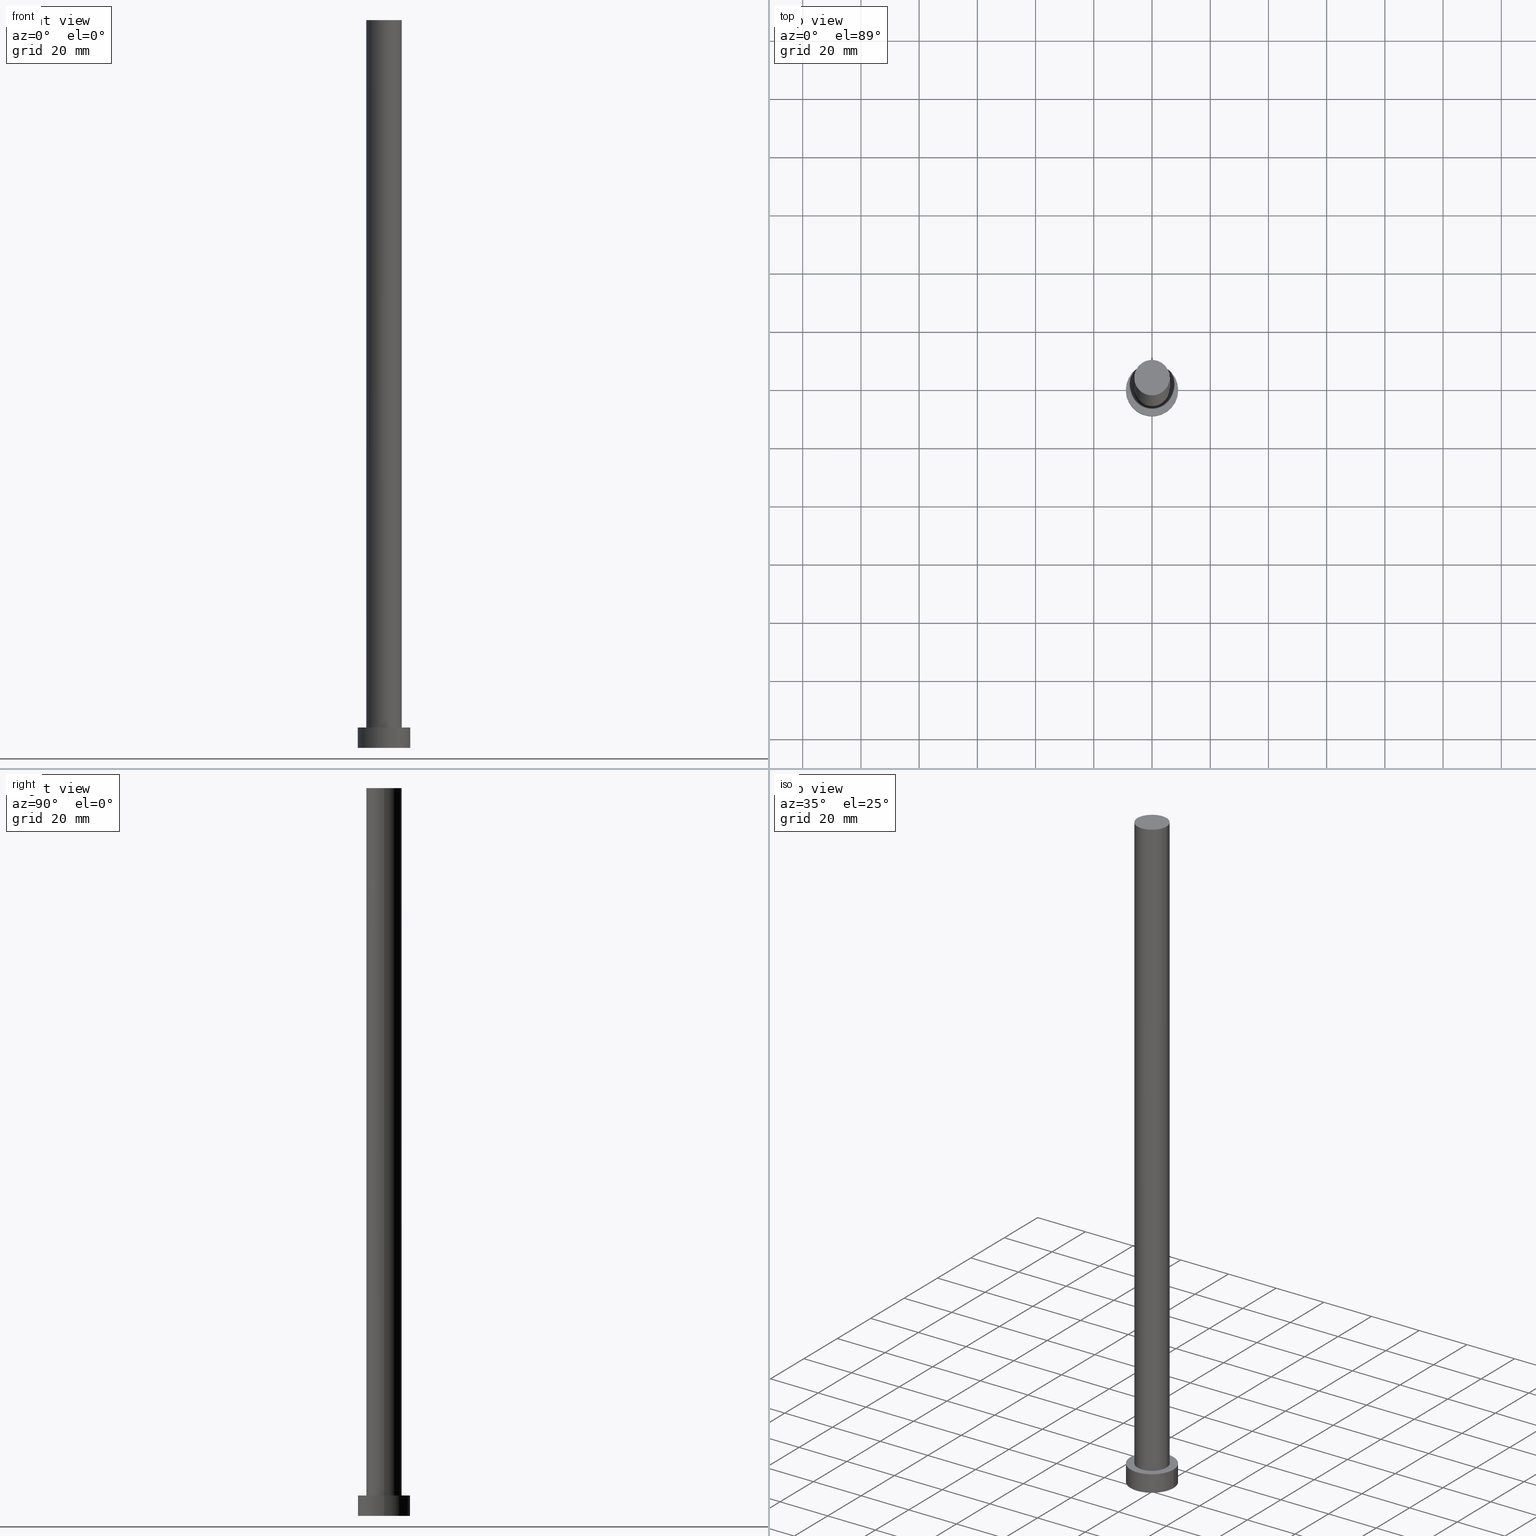
[diagram: canonical four-view strip — front | top / right | iso, engineering-drawing reading convention]
A machine part, canonical four-view strip (front | top / right | iso — engineering-drawing reading convention). The complete STEP part file that produces these views, byte-faithful:
ISO-10303-21;
HEADER;
FILE_DESCRIPTION (( 'STEP AP203' ),
    '1' );
FILE_NAME ('5ee6.STEP',
    '2023-02-12T11:03:09',
    ( '' ),
    ( '' ),
    'SwSTEP 2.0',
    'SolidWorks 2019',
    '' );
FILE_SCHEMA (( 'CONFIG_CONTROL_DESIGN' ));
ENDSEC;

DATA;
#1 = CIRCLE ( 'NONE', #216, 9.000000000000000000 ) ;
#2 = PERSON_AND_ORGANIZATION_ROLE ( 'design_supplier' ) ;
#3 = APPROVAL_DATE_TIME ( #164, #233 ) ;
#4 = AXIS2_PLACEMENT_3D ( 'NONE', #19, #177, #116 ) ;
#5 = CC_DESIGN_PERSON_AND_ORGANIZATION_ASSIGNMENT ( #41, #121, ( #105 ) ) ;
#6 = AXIS2_PLACEMENT_3D ( 'NONE', #153, #135, #211 ) ;
#7 = ORGANIZATION ( 'NEUR�EN�', 'NEUR�EN�', '' ) ;
#8 = DIRECTION ( 'NONE',  ( -0.000000000000000000, -0.000000000000000000, -1.000000000000000000 ) ) ;
#9 = DIRECTION ( 'NONE',  ( 1.000000000000000000, 0.000000000000000000, -0.000000000000000000 ) ) ;
#10 = DIRECTION ( 'NONE',  ( -0.000000000000000000, -0.000000000000000000, -1.000000000000000000 ) ) ;
#11 = CARTESIAN_POINT ( 'NONE',  ( 9.000000000000000000, 1.102182119232617714E-15, 0.000000000000000000 ) ) ;
#12 = LINE ( 'NONE', #112, #178 ) ;
#13 = CC_DESIGN_SECURITY_CLASSIFICATION ( #228, ( #38 ) ) ;
#14 = UNCERTAINTY_MEASURE_WITH_UNIT (LENGTH_MEASURE( 1.000000000000000082E-05 ), #159, 'distance_accuracy_value', 'NONE');
#15 = CARTESIAN_POINT ( 'NONE',  ( 0.000000000000000000, 0.000000000000000000, 250.0000000000000000 ) ) ;
#16 = CARTESIAN_POINT ( 'NONE',  ( 0.000000000000000000, 0.000000000000000000, 7.000000000000000000 ) ) ;
#17 = VERTEX_POINT ( 'NONE', #85 ) ;
#18 = CYLINDRICAL_SURFACE ( 'NONE', #204, 6.099999999999999645 ) ;
#19 = CARTESIAN_POINT ( 'NONE',  ( 0.000000000000000000, 0.000000000000000000, 0.000000000000000000 ) ) ;
#20 = EDGE_CURVE ( 'NONE', #36, #148, #130, .T. ) ;
#21 = CALENDAR_DATE ( 2023, 12, 2 ) ;
#22 = ADVANCED_FACE ( 'NONE', ( #63 ), #199, .T. ) ;
#23 = DIRECTION ( 'NONE',  ( 0.000000000000000000, 0.000000000000000000, 1.000000000000000000 ) ) ;
#24 = AXIS2_PLACEMENT_3D ( 'NONE', #203, #23, #254 ) ;
#25 = AXIS2_PLACEMENT_3D ( 'NONE', #151, #34, #104 ) ;
#26 = LOCAL_TIME ( 12, 3, 9.000000000000000000, #42 ) ;
#27 = LINE ( 'NONE', #195, #198 ) ;
#28 = DIRECTION ( 'NONE',  ( 0.000000000000000000, 0.000000000000000000, 1.000000000000000000 ) ) ;
#29 = PLANE ( 'NONE',  #25 ) ;
#30 = PRODUCT ( '5ee6', '5ee6', '', ( #55 ) ) ;
#31 = DIRECTION ( 'NONE',  ( 1.000000000000000000, 0.000000000000000000, 0.000000000000000000 ) ) ;
#32 = AXIS2_PLACEMENT_3D ( 'NONE', #241, #62, #149 ) ;
#33 = PERSON_AND_ORGANIZATION ( #94, #7 ) ;
#34 = DIRECTION ( 'NONE',  ( 0.000000000000000000, 0.000000000000000000, 1.000000000000000000 ) ) ;
#35 = CARTESIAN_POINT ( 'NONE',  ( 0.000000000000000000, 0.000000000000000000, 7.000000000000000000 ) ) ;
#36 = VERTEX_POINT ( 'NONE', #110 ) ;
#37 = COORDINATED_UNIVERSAL_TIME_OFFSET ( 1, 0, .AHEAD. ) ;
#38 = PRODUCT_DEFINITION_FORMATION_WITH_SPECIFIED_SOURCE ( 'LIBOVOLN�', '', #30, .NOT_KNOWN. ) ;
#39 = CC_DESIGN_APPROVAL ( #132, ( #228 ) ) ;
#40 = ORIENTED_EDGE ( 'NONE', *, *, #252, .F. ) ;
#41 = PERSON_AND_ORGANIZATION ( #94, #7 ) ;
#42 = COORDINATED_UNIVERSAL_TIME_OFFSET ( 1, 0, .AHEAD. ) ;
#43 = AXIS2_PLACEMENT_3D ( 'NONE', #16, #137, #213 ) ;
#44 = LOCAL_TIME ( 12, 3, 9.000000000000000000, #37 ) ;
#45 = EDGE_CURVE ( 'NONE', #166, #251, #230, .T. ) ;
#46 = CYLINDRICAL_SURFACE ( 'NONE', #60, 9.000000000000000000 ) ;
#47 = CARTESIAN_POINT ( 'NONE',  ( -9.000000000000000000, 0.000000000000000000, 7.000000000000000000 ) ) ;
#48 = FACE_BOUND ( 'NONE', #167, .T. ) ;
#49 = DIRECTION ( 'NONE',  ( 0.000000000000000000, 0.000000000000000000, 1.000000000000000000 ) ) ;
#50 = FACE_OUTER_BOUND ( 'NONE', #118, .T. ) ;
#51 = AXIS2_PLACEMENT_3D ( 'NONE', #191, #8, #102 ) ;
#52 = EDGE_CURVE ( 'NONE', #251, #36, #158, .T. ) ;
#53 = DIRECTION ( 'NONE',  ( -0.000000000000000000, -0.000000000000000000, -1.000000000000000000 ) ) ;
#54 = APPROVAL_STATUS ( 'not_yet_approved' ) ;
#55 = MECHANICAL_CONTEXT ( 'NONE', #174, 'mechanical' ) ;
#56 = ORIENTED_EDGE ( 'NONE', *, *, #157, .F. ) ;
#57 = PRODUCT_RELATED_PRODUCT_CATEGORY ( 'detail', '', ( #30 ) ) ;
#58 = CALENDAR_DATE ( 2023, 12, 2 ) ;
#59 = ORIENTED_EDGE ( 'NONE', *, *, #45, .T. ) ;
#60 = AXIS2_PLACEMENT_3D ( 'NONE', #169, #10, #206 ) ;
#61 = ORIENTED_EDGE ( 'NONE', *, *, #20, .T. ) ;
#62 = DIRECTION ( 'NONE',  ( 0.000000000000000000, 0.000000000000000000, 1.000000000000000000 ) ) ;
#63 = FACE_OUTER_BOUND ( 'NONE', #99, .T. ) ;
#64 = LOCAL_TIME ( 12, 3, 9.000000000000000000, #86 ) ;
#65 = CARTESIAN_POINT ( 'NONE',  ( 0.000000000000000000, 0.000000000000000000, 7.000000000000000000 ) ) ;
#66 = CARTESIAN_POINT ( 'NONE',  ( 0.000000000000000000, 0.000000000000000000, 7.000000000000000000 ) ) ;
#67 = AXIS2_PLACEMENT_3D ( 'NONE', #243, #49, #197 ) ;
#68 = APPROVAL_PERSON_ORGANIZATION ( #75, #233, #139 ) ;
#69 = DIRECTION ( 'NONE',  ( -0.000000000000000000, -0.000000000000000000, -1.000000000000000000 ) ) ;
#70 = ORIENTED_EDGE ( 'NONE', *, *, #187, .F. ) ;
#71 = PERSON_AND_ORGANIZATION_ROLE ( 'design_owner' ) ;
#72 = APPROVAL_DATE_TIME ( #119, #98 ) ;
#73 = ADVANCED_FACE ( 'NONE', ( #48, #202 ), #196, .T. ) ;
#74 = DATE_TIME_ROLE ( 'classification_date' ) ;
#75 = PERSON_AND_ORGANIZATION ( #94, #7 ) ;
#76 = PERSON_AND_ORGANIZATION ( #94, #7 ) ;
#77 = CC_DESIGN_APPROVAL ( #233, ( #38 ) ) ;
#78 = ORIENTED_EDGE ( 'NONE', *, *, #128, .F. ) ;
#79 = ORIENTED_EDGE ( 'NONE', *, *, #193, .F. ) ;
#80 = FACE_OUTER_BOUND ( 'NONE', #113, .T. ) ;
#81 = CARTESIAN_POINT ( 'NONE',  ( -9.000000000000000000, 0.000000000000000000, 7.000000000000000000 ) ) ;
#82 = VERTEX_POINT ( 'NONE', #11 ) ;
#83 = CARTESIAN_POINT ( 'NONE',  ( -6.099999999999999645, 0.000000000000000000, 7.000000000000000000 ) ) ;
#84 = CC_DESIGN_PERSON_AND_ORGANIZATION_ASSIGNMENT ( #165, #2, ( #38 ) ) ;
#85 = CARTESIAN_POINT ( 'NONE',  ( -9.000000000000000000, 0.000000000000000000, 0.000000000000000000 ) ) ;
#86 = COORDINATED_UNIVERSAL_TIME_OFFSET ( 1, 0, .AHEAD. ) ;
#87 = CARTESIAN_POINT ( 'NONE',  ( -6.099999999999999645, 0.000000000000000000, 250.0000000000000000 ) ) ;
#88 = CARTESIAN_POINT ( 'NONE',  ( 0.000000000000000000, 0.000000000000000000, 7.000000000000000000 ) ) ;
#89 = ORIENTED_EDGE ( 'NONE', *, *, #193, .T. ) ;
#90 =( NAMED_UNIT ( * ) PLANE_ANGLE_UNIT ( ) SI_UNIT ( $, .RADIAN. ) );
#91 = ORIENTED_EDGE ( 'NONE', *, *, #252, .T. ) ;
#92 = AXIS2_PLACEMENT_3D ( 'NONE', #88, #172, #150 ) ;
#93 = ORIENTED_EDGE ( 'NONE', *, *, #157, .T. ) ;
#94 = PERSON ( 'NEUR�EN�', 'NEUR�EN�', 'NEUR�EN�', ('NEUR�EN�'), ('NEUR�EN�'), ('NEUR�EN�') ) ;
#95 = DATE_AND_TIME ( #162, #190 ) ;
#96 = ORIENTED_EDGE ( 'NONE', *, *, #134, .F. ) ;
#97 = CLOSED_SHELL ( 'NONE', ( #100, #219, #22, #73, #244, #229, #129 ) ) ;
#98 = APPROVAL ( #54, 'NEUR�EN�' ) ;
#99 = EDGE_LOOP ( 'NONE', ( #239, #79, #181, #91 ) ) ;
#100 = ADVANCED_FACE ( 'NONE', ( #50 ), #18, .T. ) ;
#101 = CYLINDRICAL_SURFACE ( 'NONE', #51, 6.099999999999999645 ) ;
#102 = DIRECTION ( 'NONE',  ( -1.000000000000000000, 0.000000000000000000, 0.000000000000000000 ) ) ;
#103 = EDGE_LOOP ( 'NONE', ( #89, #253 ) ) ;
#104 = DIRECTION ( 'NONE',  ( 1.000000000000000000, 0.000000000000000000, -0.000000000000000000 ) ) ;
#105 = PRODUCT_DEFINITION ( 'NEZN�M�', '', #38, #173 ) ;
#106 = EDGE_CURVE ( 'NONE', #148, #36, #122, .T. ) ;
#107 = CARTESIAN_POINT ( 'NONE',  ( 9.000000000000000000, 1.102182119232617714E-15, 7.000000000000000000 ) ) ;
#108 = ORIENTED_EDGE ( 'NONE', *, *, #45, .F. ) ;
#109 = VECTOR ( 'NONE', #249, 1000.000000000000000 ) ;
#110 = CARTESIAN_POINT ( 'NONE',  ( 6.099999999999999645, 7.470345474798854293E-16, 7.000000000000000000 ) ) ;
#111 = COORDINATED_UNIVERSAL_TIME_OFFSET ( 1, 0, .AHEAD. ) ;
#112 = CARTESIAN_POINT ( 'NONE',  ( -6.099999999999999645, 0.000000000000000000, 250.0000000000000000 ) ) ;
#113 = EDGE_LOOP ( 'NONE', ( #40, #78 ) ) ;
#114 = APPROVAL_ROLE ( '' ) ;
#115 =( NAMED_UNIT ( * ) SI_UNIT ( $, .STERADIAN. ) SOLID_ANGLE_UNIT ( ) );
#116 = DIRECTION ( 'NONE',  ( 1.000000000000000000, 0.000000000000000000, 0.000000000000000000 ) ) ;
#117 = EDGE_CURVE ( 'NONE', #189, #127, #156, .T. ) ;
#118 = EDGE_LOOP ( 'NONE', ( #56, #144, #61, #96 ) ) ;
#119 = DATE_AND_TIME ( #21, #44 ) ;
#120 = ORIENTED_EDGE ( 'NONE', *, *, #106, .T. ) ;
#121 = PERSON_AND_ORGANIZATION_ROLE ( 'creator' ) ;
#122 = CIRCLE ( 'NONE', #6, 6.099999999999999645 ) ;
#123 = CALENDAR_DATE ( 2023, 12, 2 ) ;
#124 = SECURITY_CLASSIFICATION_LEVEL ( 'unclassified' ) ;
#125 = CC_DESIGN_DATE_AND_TIME_ASSIGNMENT ( #147, #74, ( #228 ) ) ;
#126 = MANIFOLD_SOLID_BREP ( 'P�idat vysunut�m3', #97 ) ;
#127 = VERTEX_POINT ( 'NONE', #81 ) ;
#128 = EDGE_CURVE ( 'NONE', #82, #17, #188, .T. ) ;
#129 = ADVANCED_FACE ( 'NONE', ( #210 ), #29, .T. ) ;
#130 = CIRCLE ( 'NONE', #92, 6.099999999999999645 ) ;
#131 = CARTESIAN_POINT ( 'NONE',  ( 6.099999999999999645, 7.470345474798854293E-16, 250.0000000000000000 ) ) ;
#132 = APPROVAL ( #176, 'NEUR�EN�' ) ;
#133 = DIRECTION ( 'NONE',  ( 1.000000000000000000, 0.000000000000000000, 0.000000000000000000 ) ) ;
#134 = EDGE_CURVE ( 'NONE', #166, #148, #12, .T. ) ;
#135 = DIRECTION ( 'NONE',  ( 0.000000000000000000, 0.000000000000000000, 1.000000000000000000 ) ) ;
#136 = FACE_OUTER_BOUND ( 'NONE', #217, .T. ) ;
#137 = DIRECTION ( 'NONE',  ( 0.000000000000000000, 0.000000000000000000, 1.000000000000000000 ) ) ;
#138 = AXIS2_PLACEMENT_3D ( 'NONE', #65, #231, #9 ) ;
#139 = APPROVAL_ROLE ( '' ) ;
#140 = DIRECTION ( 'NONE',  ( -1.000000000000000000, 0.000000000000000000, 0.000000000000000000 ) ) ;
#141 = APPROVAL_ROLE ( '' ) ;
#142 = CC_DESIGN_PERSON_AND_ORGANIZATION_ASSIGNMENT ( #220, #71, ( #30 ) ) ;
#143 = EDGE_LOOP ( 'NONE', ( #59, #93 ) ) ;
#144 = ORIENTED_EDGE ( 'NONE', *, *, #52, .T. ) ;
#145 = PERSON_AND_ORGANIZATION ( #94, #7 ) ;
#146 = CC_DESIGN_APPROVAL ( #98, ( #105 ) ) ;
#147 = DATE_AND_TIME ( #218, #152 ) ;
#148 = VERTEX_POINT ( 'NONE', #83 ) ;
#149 = DIRECTION ( 'NONE',  ( 1.000000000000000000, 0.000000000000000000, -0.000000000000000000 ) ) ;
#150 = DIRECTION ( 'NONE',  ( 1.000000000000000000, 0.000000000000000000, 0.000000000000000000 ) ) ;
#151 = CARTESIAN_POINT ( 'NONE',  ( 0.000000000000000000, 0.000000000000000000, 250.0000000000000000 ) ) ;
#152 = LOCAL_TIME ( 12, 3, 9.000000000000000000, #237 ) ;
#153 = CARTESIAN_POINT ( 'NONE',  ( 0.000000000000000000, 0.000000000000000000, 7.000000000000000000 ) ) ;
#154 = DIRECTION ( 'NONE',  ( 1.000000000000000000, 0.000000000000000000, 0.000000000000000000 ) ) ;
#155 = ORIENTED_EDGE ( 'NONE', *, *, #20, .F. ) ;
#156 = CIRCLE ( 'NONE', #43, 9.000000000000000000 ) ;
#157 = EDGE_CURVE ( 'NONE', #251, #166, #207, .T. ) ;
#158 = LINE ( 'NONE', #246, #227 ) ;
#159 =( LENGTH_UNIT ( ) NAMED_UNIT ( * ) SI_UNIT ( .MILLI., .METRE. ) );
#160 = APPLICATION_PROTOCOL_DEFINITION ( 'international standard', 'config_control_design', 1994, #182 ) ;
#161 = DATE_AND_TIME ( #123, #64 ) ;
#162 = CALENDAR_DATE ( 2023, 12, 2 ) ;
#163 = CC_DESIGN_PERSON_AND_ORGANIZATION_ASSIGNMENT ( #76, #221, ( #38 ) ) ;
#164 = DATE_AND_TIME ( #58, #26 ) ;
#165 = PERSON_AND_ORGANIZATION ( #94, #7 ) ;
#166 = VERTEX_POINT ( 'NONE', #87 ) ;
#167 = EDGE_LOOP ( 'NONE', ( #223, #155 ) ) ;
#168 = PLANE ( 'NONE',  #32 ) ;
#169 = CARTESIAN_POINT ( 'NONE',  ( 0.000000000000000000, 0.000000000000000000, 7.000000000000000000 ) ) ;
#170 = LINE ( 'NONE', #47, #109 ) ;
#171 = APPROVAL_PERSON_ORGANIZATION ( #235, #98, #141 ) ;
#172 = DIRECTION ( 'NONE',  ( 0.000000000000000000, 0.000000000000000000, 1.000000000000000000 ) ) ;
#173 = DESIGN_CONTEXT ( 'detailed design', #182, 'design' ) ;
#174 = APPLICATION_CONTEXT ( 'configuration controlled 3d designs of mechanical parts and assemblies' ) ;
#175 = DIRECTION ( 'NONE',  ( -1.000000000000000000, 0.000000000000000000, 0.000000000000000000 ) ) ;
#176 = APPROVAL_STATUS ( 'not_yet_approved' ) ;
#177 = DIRECTION ( 'NONE',  ( 0.000000000000000000, 0.000000000000000000, 1.000000000000000000 ) ) ;
#178 = VECTOR ( 'NONE', #226, 1000.000000000000000 ) ;
#179 = EDGE_CURVE ( 'NONE', #189, #82, #27, .T. ) ;
#180 = APPLICATION_PROTOCOL_DEFINITION ( 'international standard', 'config_control_design', 1994, #174 ) ;
#181 = ORIENTED_EDGE ( 'NONE', *, *, #187, .T. ) ;
#182 = APPLICATION_CONTEXT ( 'configuration controlled 3d designs of mechanical parts and assemblies' ) ;
#183 = APPROVAL_DATE_TIME ( #161, #132 ) ;
#184 = ORIENTED_EDGE ( 'NONE', *, *, #52, .F. ) ;
#185 = APPROVAL_STATUS ( 'not_yet_approved' ) ;
#186 = APPROVAL_PERSON_ORGANIZATION ( #33, #132, #114 ) ;
#187 = EDGE_CURVE ( 'NONE', #127, #17, #170, .T. ) ;
#188 = CIRCLE ( 'NONE', #67, 9.000000000000000000 ) ;
#189 = VERTEX_POINT ( 'NONE', #107 ) ;
#190 = LOCAL_TIME ( 12, 3, 9.000000000000000000, #111 ) ;
#191 = CARTESIAN_POINT ( 'NONE',  ( 0.000000000000000000, 0.000000000000000000, 250.0000000000000000 ) ) ;
#192 = FACE_OUTER_BOUND ( 'NONE', #222, .T. ) ;
#193 = EDGE_CURVE ( 'NONE', #127, #189, #1, .T. ) ;
#194 = DIRECTION ( 'NONE',  ( -0.000000000000000000, -0.000000000000000000, -1.000000000000000000 ) ) ;
#195 = CARTESIAN_POINT ( 'NONE',  ( 9.000000000000000000, 1.102182119232617714E-15, 7.000000000000000000 ) ) ;
#196 = PLANE ( 'NONE',  #138 ) ;
#197 = DIRECTION ( 'NONE',  ( 1.000000000000000000, 0.000000000000000000, 0.000000000000000000 ) ) ;
#198 = VECTOR ( 'NONE', #247, 1000.000000000000000 ) ;
#199 = CYLINDRICAL_SURFACE ( 'NONE', #240, 9.000000000000000000 ) ;
#200 = PERSON_AND_ORGANIZATION_ROLE ( 'classification_officer' ) ;
#201 = DIRECTION ( 'NONE',  ( 0.000000000000000000, 0.000000000000000000, 1.000000000000000000 ) ) ;
#202 = FACE_OUTER_BOUND ( 'NONE', #103, .T. ) ;
#203 = CARTESIAN_POINT ( 'NONE',  ( 0.000000000000000000, 0.000000000000000000, 0.000000000000000000 ) ) ;
#204 = AXIS2_PLACEMENT_3D ( 'NONE', #234, #53, #140 ) ;
#205 = CC_DESIGN_DATE_AND_TIME_ASSIGNMENT ( #95, #238, ( #105 ) ) ;
#206 = DIRECTION ( 'NONE',  ( -1.000000000000000000, 0.000000000000000000, 0.000000000000000000 ) ) ;
#207 = CIRCLE ( 'NONE', #236, 6.099999999999999645 ) ;
#208 = ADVANCED_BREP_SHAPE_REPRESENTATION ( '5ee6', ( #126, #4 ), #232 ) ;
#209 = CIRCLE ( 'NONE', #24, 9.000000000000000000 ) ;
#210 = FACE_OUTER_BOUND ( 'NONE', #143, .T. ) ;
#211 = DIRECTION ( 'NONE',  ( 1.000000000000000000, 0.000000000000000000, 0.000000000000000000 ) ) ;
#212 = ORIENTED_EDGE ( 'NONE', *, *, #134, .T. ) ;
#213 = DIRECTION ( 'NONE',  ( 1.000000000000000000, 0.000000000000000000, 0.000000000000000000 ) ) ;
#214 = CC_DESIGN_PERSON_AND_ORGANIZATION_ASSIGNMENT ( #145, #200, ( #228 ) ) ;
#215 = ORIENTED_EDGE ( 'NONE', *, *, #179, .T. ) ;
#216 = AXIS2_PLACEMENT_3D ( 'NONE', #66, #224, #31 ) ;
#217 = EDGE_LOOP ( 'NONE', ( #184, #108, #212, #120 ) ) ;
#218 = CALENDAR_DATE ( 2023, 12, 2 ) ;
#219 = ADVANCED_FACE ( 'NONE', ( #192 ), #46, .T. ) ;
#220 = PERSON_AND_ORGANIZATION ( #94, #7 ) ;
#221 = PERSON_AND_ORGANIZATION_ROLE ( 'creator' ) ;
#222 = EDGE_LOOP ( 'NONE', ( #242, #215, #255, #70 ) ) ;
#223 = ORIENTED_EDGE ( 'NONE', *, *, #106, .F. ) ;
#224 = DIRECTION ( 'NONE',  ( 0.000000000000000000, 0.000000000000000000, 1.000000000000000000 ) ) ;
#225 = PRODUCT_DEFINITION_SHAPE ( 'NONE', 'NONE',  #105 ) ;
#226 = DIRECTION ( 'NONE',  ( -0.000000000000000000, -0.000000000000000000, -1.000000000000000000 ) ) ;
#227 = VECTOR ( 'NONE', #194, 1000.000000000000000 ) ;
#228 = SECURITY_CLASSIFICATION ( '', '', #124 ) ;
#229 = ADVANCED_FACE ( 'NONE', ( #136 ), #101, .T. ) ;
#230 = CIRCLE ( 'NONE', #250, 6.099999999999999645 ) ;
#231 = DIRECTION ( 'NONE',  ( 0.000000000000000000, 0.000000000000000000, 1.000000000000000000 ) ) ;
#232 =( GEOMETRIC_REPRESENTATION_CONTEXT ( 3 ) GLOBAL_UNCERTAINTY_ASSIGNED_CONTEXT ( ( #14 ) ) GLOBAL_UNIT_ASSIGNED_CONTEXT ( ( #159, #90, #115 ) ) REPRESENTATION_CONTEXT ( 'NONE', 'WORKASPACE' ) );
#233 = APPROVAL ( #185, 'NEUR�EN�' ) ;
#234 = CARTESIAN_POINT ( 'NONE',  ( 0.000000000000000000, 0.000000000000000000, 250.0000000000000000 ) ) ;
#235 = PERSON_AND_ORGANIZATION ( #94, #7 ) ;
#236 = AXIS2_PLACEMENT_3D ( 'NONE', #245, #201, #133 ) ;
#237 = COORDINATED_UNIVERSAL_TIME_OFFSET ( 1, 0, .AHEAD. ) ;
#238 = DATE_TIME_ROLE ( 'creation_date' ) ;
#239 = ORIENTED_EDGE ( 'NONE', *, *, #179, .F. ) ;
#240 = AXIS2_PLACEMENT_3D ( 'NONE', #35, #69, #175 ) ;
#241 = CARTESIAN_POINT ( 'NONE',  ( 0.000000000000000000, 0.000000000000000000, 0.000000000000000000 ) ) ;
#242 = ORIENTED_EDGE ( 'NONE', *, *, #117, .F. ) ;
#243 = CARTESIAN_POINT ( 'NONE',  ( 0.000000000000000000, 0.000000000000000000, 0.000000000000000000 ) ) ;
#244 = ADVANCED_FACE ( 'NONE', ( #80 ), #168, .F. ) ;
#245 = CARTESIAN_POINT ( 'NONE',  ( 0.000000000000000000, 0.000000000000000000, 250.0000000000000000 ) ) ;
#246 = CARTESIAN_POINT ( 'NONE',  ( 6.099999999999999645, 7.470345474798854293E-16, 250.0000000000000000 ) ) ;
#247 = DIRECTION ( 'NONE',  ( -0.000000000000000000, -0.000000000000000000, -1.000000000000000000 ) ) ;
#248 = SHAPE_DEFINITION_REPRESENTATION ( #225, #208 ) ;
#249 = DIRECTION ( 'NONE',  ( -0.000000000000000000, -0.000000000000000000, -1.000000000000000000 ) ) ;
#250 = AXIS2_PLACEMENT_3D ( 'NONE', #15, #28, #154 ) ;
#251 = VERTEX_POINT ( 'NONE', #131 ) ;
#252 = EDGE_CURVE ( 'NONE', #17, #82, #209, .T. ) ;
#253 = ORIENTED_EDGE ( 'NONE', *, *, #117, .T. ) ;
#254 = DIRECTION ( 'NONE',  ( 1.000000000000000000, 0.000000000000000000, 0.000000000000000000 ) ) ;
#255 = ORIENTED_EDGE ( 'NONE', *, *, #128, .T. ) ;
ENDSEC;
END-ISO-10303-21;
